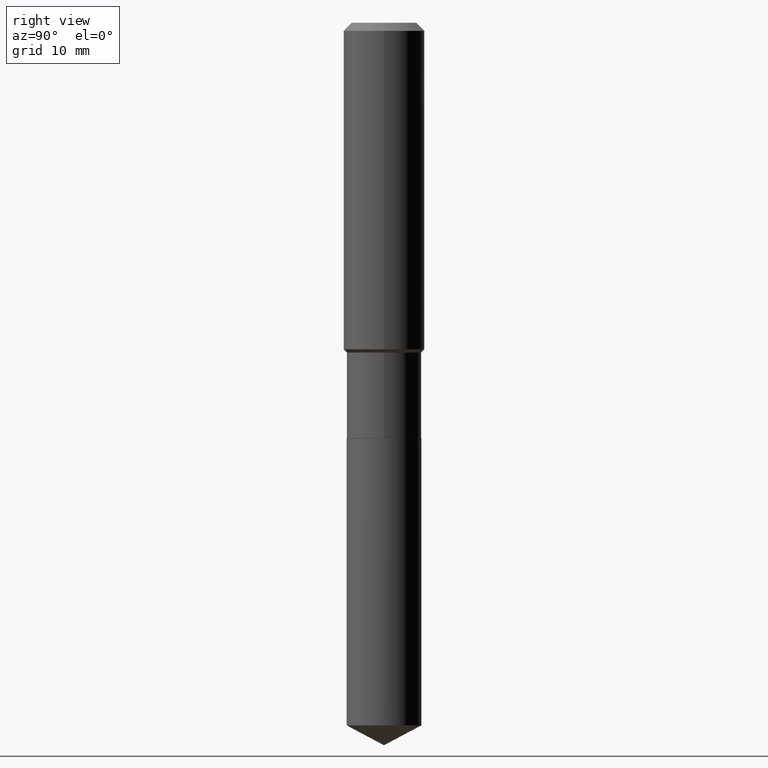
[diagram: clean part render]
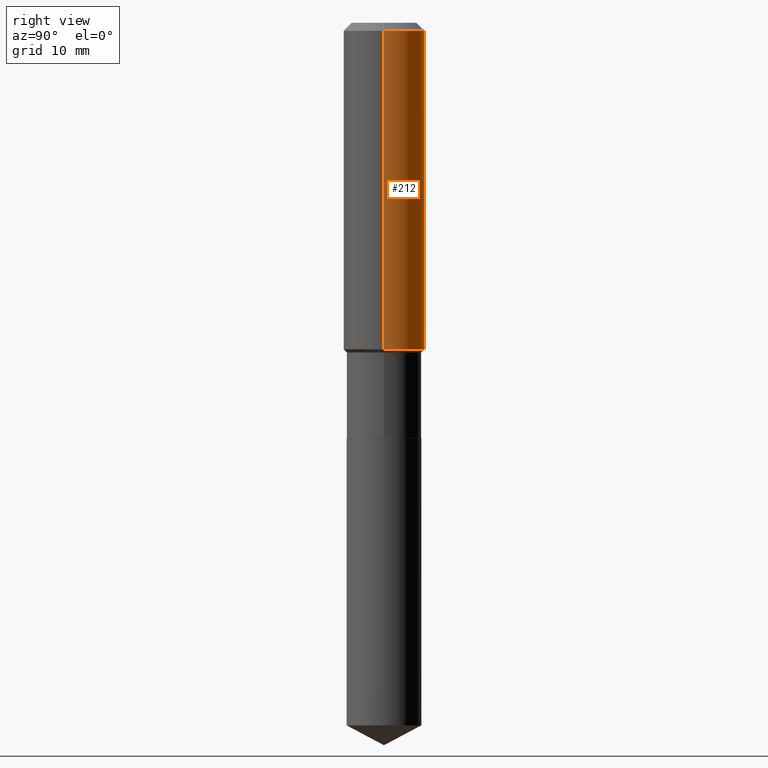
[diagram: same view with one face highlighted and labeled with its STEP entity id]
A machine part, right view. The second image highlights one B-rep face of the part: STEP entity #212.
In plain terms, the highlighted cylindrical surface (partial cylindrical patch) has radius 5 mm, axis along (-0, 0, 1).
Its self-contained STEP definition (entity closure, byte-faithful):
#7 = CARTESIAN_POINT ( 'NONE',  ( 3.872277581153853552E-29, -5.528586125991177772E-15, -1.583449999999999580 ) ) ;
#14 = DIRECTION ( 'NONE',  ( -2.445468806185136597E-29, 3.491481338843145583E-15, 1.000000000000000000 ) ) ;
#22 = CIRCLE ( 'NONE', #290, 0.1968500000000000250 ) ;
#38 = DIRECTION ( 'NONE',  ( 1.000000000000000000, -6.982962677686265922E-15, 0.000000000000000000 ) ) ;
#47 = DIRECTION ( 'NONE',  ( 1.000000000000000000, -6.982962677686265922E-15, 0.000000000000000000 ) ) ;
#50 = LINE ( 'NONE', #430, #327 ) ;
#58 = VERTEX_POINT ( 'NONE', #450 ) ;
#66 = DIRECTION ( 'NONE',  ( -2.445468806185136597E-29, 3.491481338843145583E-15, 1.000000000000000000 ) ) ;
#74 = DIRECTION ( 'NONE',  ( -2.445468806185136877E-29, 3.491481338843145188E-15, 1.000000000000000000 ) ) ;
#88 = VERTEX_POINT ( 'NONE', #345 ) ;
#89 = AXIS2_PLACEMENT_3D ( 'NONE', #315, #14, #126 ) ;
#93 = VERTEX_POINT ( 'NONE', #197 ) ;
#96 = ORIENTED_EDGE ( 'NONE', *, *, #417, .F. ) ;
#97 = EDGE_CURVE ( 'NONE', #98, #58, #257, .T. ) ;
#98 = VERTEX_POINT ( 'NONE', #375 ) ;
#100 = EDGE_LOOP ( 'NONE', ( #472, #176, #96, #370 ) ) ;
#114 = FACE_OUTER_BOUND ( 'NONE', #100, .T. ) ;
#126 = DIRECTION ( 'NONE',  ( 1.000000000000000000, -6.982962677686266711E-15, 4.876176775795935793E-29 ) ) ;
#155 = CARTESIAN_POINT ( 'NONE',  ( 9.627810689950954155E-31, -1.374596203102556547E-16, -0.03937000000000029365 ) ) ;
#176 = ORIENTED_EDGE ( 'NONE', *, *, #239, .T. ) ;
#197 = CARTESIAN_POINT ( 'NONE',  ( -0.1968500000000000250, -1.434319497806958297E-15, -0.03937000000000029365 ) ) ;
#212 = ADVANCED_FACE ( 'NONE', ( #114 ), #381, .T. ) ;
#239 = EDGE_CURVE ( 'NONE', #58, #93, #50, .T. ) ;
#257 = CIRCLE ( 'NONE', #483, 0.1968500000000002192 ) ;
#290 = AXIS2_PLACEMENT_3D ( 'NONE', #155, #457, #47 ) ;
#310 = LINE ( 'NONE', #464, #368 ) ;
#315 = CARTESIAN_POINT ( 'NONE',  ( 0.000000000000000000, 0.000000000000000000, 0.000000000000000000 ) ) ;
#327 = VECTOR ( 'NONE', #396, 39.37007874015748143 ) ;
#345 = CARTESIAN_POINT ( 'NONE',  ( 0.1968500000000000250, -1.512055823412797189E-15, -0.03937000000000029365 ) ) ;
#368 = VECTOR ( 'NONE', #74, 39.37007874015748143 ) ;
#370 = ORIENTED_EDGE ( 'NONE', *, *, #434, .F. ) ;
#375 = CARTESIAN_POINT ( 'NONE',  ( 0.1968500000000002192, -6.903182329093720169E-15, -1.583449999999999580 ) ) ;
#381 = CYLINDRICAL_SURFACE ( 'NONE', #89, 0.1968500000000001082 ) ;
#396 = DIRECTION ( 'NONE',  ( -2.445468806185136877E-29, 3.491481338843145188E-15, 1.000000000000000000 ) ) ;
#417 = EDGE_CURVE ( 'NONE', #88, #93, #22, .T. ) ;
#430 = CARTESIAN_POINT ( 'NONE',  ( -0.1968500000000001082, 1.398703375343757985E-15, -9.682923725166787881E-30 ) ) ;
#434 = EDGE_CURVE ( 'NONE', #98, #88, #310, .T. ) ;
#450 = CARTESIAN_POINT ( 'NONE',  ( -0.1968500000000002192, -4.129882750647417618E-15, -1.583449999999999580 ) ) ;
#457 = DIRECTION ( 'NONE',  ( -2.445468806185136597E-29, 3.491481338843145583E-15, 1.000000000000000000 ) ) ;
#464 = CARTESIAN_POINT ( 'NONE',  ( 0.1968500000000001082, -1.374596203102542397E-15, 9.598753983154305062E-30 ) ) ;
#472 = ORIENTED_EDGE ( 'NONE', *, *, #97, .T. ) ;
#483 = AXIS2_PLACEMENT_3D ( 'NONE', #7, #66, #38 ) ;